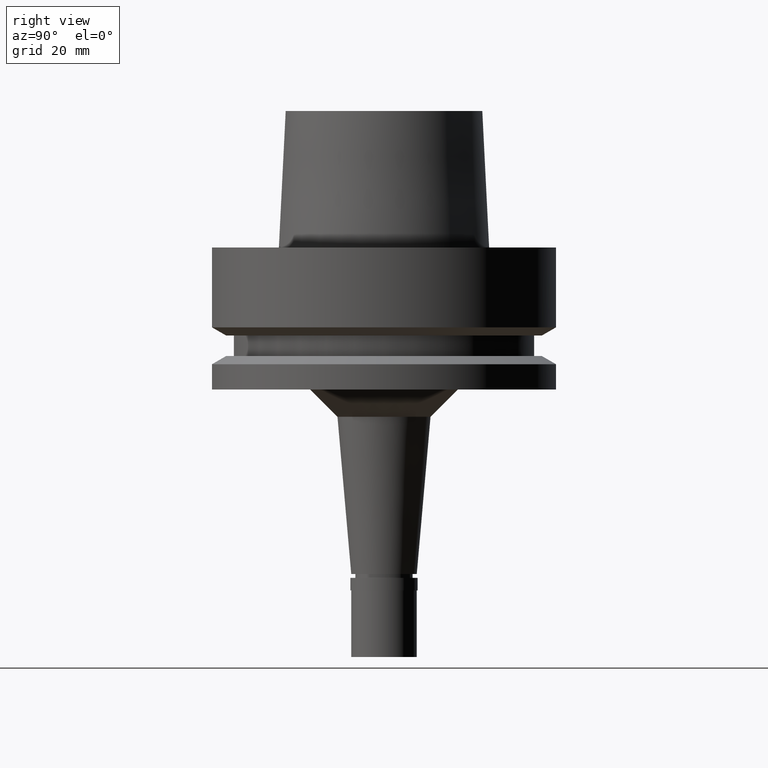
[diagram: clean part render]
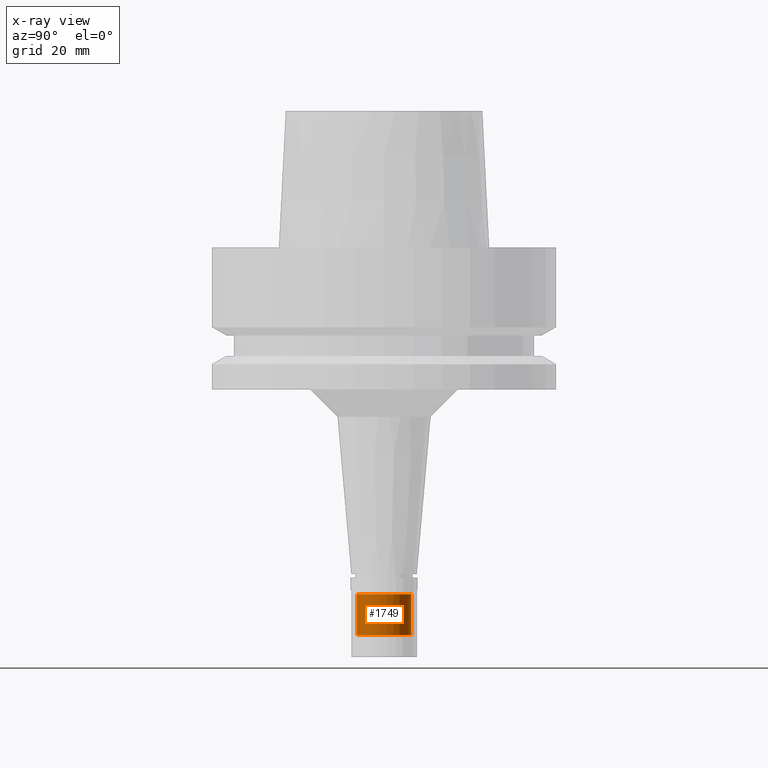
[diagram: x-ray — body ghosted, one internal face saturated and labeled with its STEP entity id]
A machine part, right view, then the same camera in x-ray: the body is ghosted and one INTERNAL B-rep face — a face not visible from any outside direction — is saturated and labeled: STEP entity #1749.
In plain terms, the highlighted cylindrical surface (edge-blend (fillet) strip) has radius 5 mm, axis along (0, 0, -1).
Its self-contained STEP definition (entity closure, byte-faithful):
#47 = EDGE_CURVE ( 'NONE', #125, #2216, #434, .T. ) ;
#125 = VERTEX_POINT ( 'NONE', #2318 ) ;
#159 = DIRECTION ( 'NONE',  ( 0.0000000000000000000, 0.0000000000000000000, -1.000000000000000000 ) ) ;
#190 = CARTESIAN_POINT ( 'NONE',  ( 0.0000000000000000000, 5.000000000000000000, -71.00000000000000000 ) ) ;
#254 = EDGE_CURVE ( 'NONE', #816, #2390, #2141, .T. ) ;
#338 = EDGE_LOOP ( 'NONE', ( #2284, #1683, #2039, #1102 ) ) ;
#434 = CIRCLE ( 'NONE', #2543, 5.000000000000000000 ) ;
#754 = CARTESIAN_POINT ( 'NONE',  ( 0.0000000000000000000, -5.000000000000000000, -63.50000000000000000 ) ) ;
#786 = CARTESIAN_POINT ( 'NONE',  ( 0.0000000000000000000, -5.000000000000000000, -71.00000000000000000 ) ) ;
#816 = VERTEX_POINT ( 'NONE', #786 ) ;
#1017 = EDGE_CURVE ( 'NONE', #2216, #816, #1176, .T. ) ;
#1102 = ORIENTED_EDGE ( 'NONE', *, *, #2095, .F. ) ;
#1119 = VECTOR ( 'NONE', #2358, 1000.000000000000000 ) ;
#1151 = CARTESIAN_POINT ( 'NONE',  ( 0.0000000000000000000, 1.589591545292999879E-14, -71.00000000000000000 ) ) ;
#1176 = LINE ( 'NONE', #1829, #1192 ) ;
#1192 = VECTOR ( 'NONE', #1194, 1000.000000000000000 ) ;
#1194 = DIRECTION ( 'NONE',  ( 0.0000000000000000000, 0.0000000000000000000, -1.000000000000000000 ) ) ;
#1197 = FACE_OUTER_BOUND ( 'NONE', #338, .T. ) ;
#1507 = LINE ( 'NONE', #2332, #1119 ) ;
#1673 = DIRECTION ( 'NONE',  ( 0.0000000000000000000, -1.000000000000000000, 0.0000000000000000000 ) ) ;
#1683 = ORIENTED_EDGE ( 'NONE', *, *, #1017, .T. ) ;
#1749 = ADVANCED_FACE ( 'NONE', ( #1197 ), #2517, .T. ) ;
#1829 = CARTESIAN_POINT ( 'NONE',  ( 0.0000000000000000000, -5.000000000000000000, -63.50000000000000000 ) ) ;
#1865 = DIRECTION ( 'NONE',  ( 0.0000000000000000000, 0.0000000000000000000, -1.000000000000000000 ) ) ;
#1868 = AXIS2_PLACEMENT_3D ( 'NONE', #1890, #1865, #1673 ) ;
#1890 = CARTESIAN_POINT ( 'NONE',  ( 0.0000000000000000000, 1.589591545292999879E-14, 29.80000000000000071 ) ) ;
#2039 = ORIENTED_EDGE ( 'NONE', *, *, #254, .T. ) ;
#2068 = DIRECTION ( 'NONE',  ( 0.0000000000000000000, 1.000000000000000000, 0.0000000000000000000 ) ) ;
#2095 = EDGE_CURVE ( 'NONE', #125, #2390, #1507, .T. ) ;
#2141 = CIRCLE ( 'NONE', #2679, 5.000000000000000000 ) ;
#2183 = DIRECTION ( 'NONE',  ( 0.0000000000000000000, -1.000000000000000000, 0.0000000000000000000 ) ) ;
#2216 = VERTEX_POINT ( 'NONE', #754 ) ;
#2284 = ORIENTED_EDGE ( 'NONE', *, *, #47, .T. ) ;
#2318 = CARTESIAN_POINT ( 'NONE',  ( 0.0000000000000000000, 5.000000000000000000, -63.50000000000000000 ) ) ;
#2332 = CARTESIAN_POINT ( 'NONE',  ( 0.0000000000000000000, 5.000000000000000000, -63.50000000000000000 ) ) ;
#2358 = DIRECTION ( 'NONE',  ( 0.0000000000000000000, 0.0000000000000000000, -1.000000000000000000 ) ) ;
#2390 = VERTEX_POINT ( 'NONE', #190 ) ;
#2402 = DIRECTION ( 'NONE',  ( 0.0000000000000000000, 0.0000000000000000000, 1.000000000000000000 ) ) ;
#2487 = CARTESIAN_POINT ( 'NONE',  ( 0.0000000000000000000, 1.589591545292999879E-14, -63.50000000000000000 ) ) ;
#2517 = CYLINDRICAL_SURFACE ( 'NONE', #1868, 5.000000000000000000 ) ;
#2543 = AXIS2_PLACEMENT_3D ( 'NONE', #2487, #159, #2068 ) ;
#2679 = AXIS2_PLACEMENT_3D ( 'NONE', #1151, #2402, #2183 ) ;